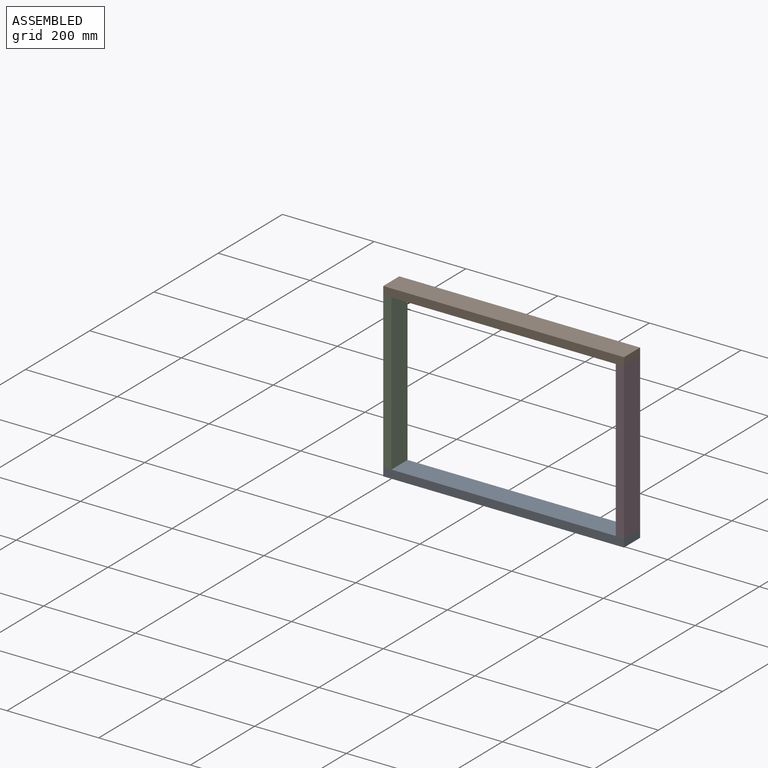
[diagram: assembled view]
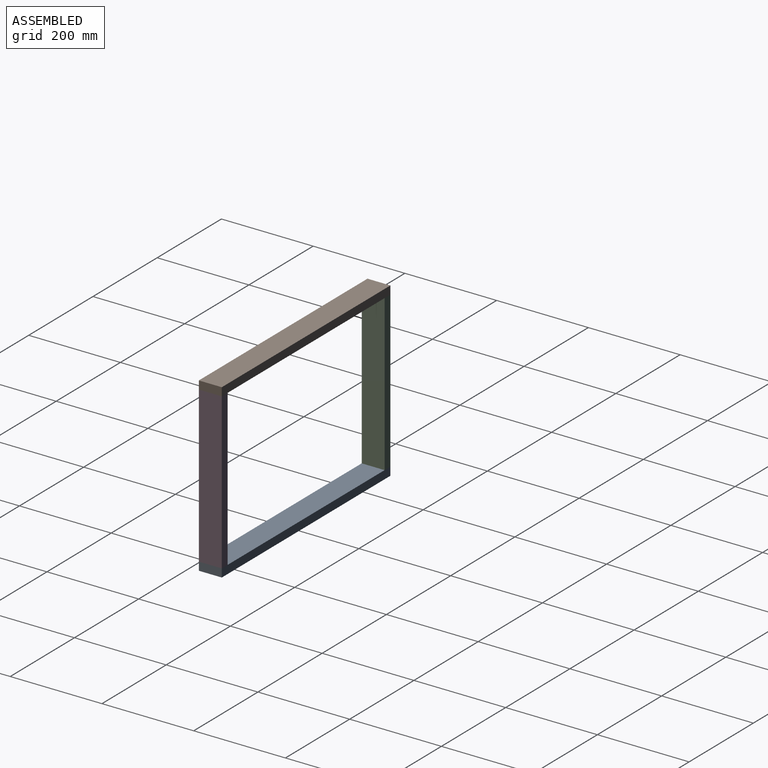
[diagram: assembled view, second angle]
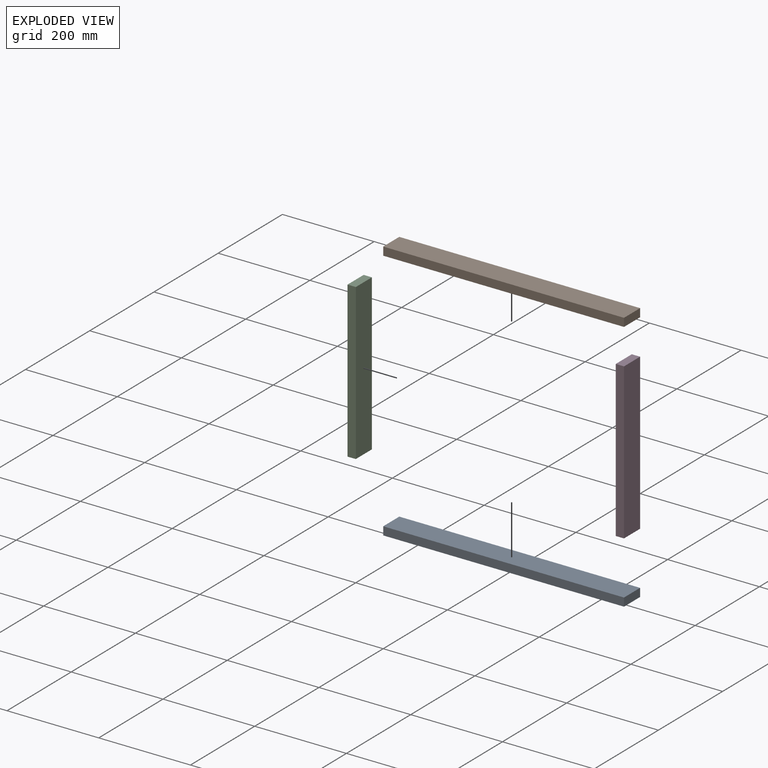
[diagram: exploded view]
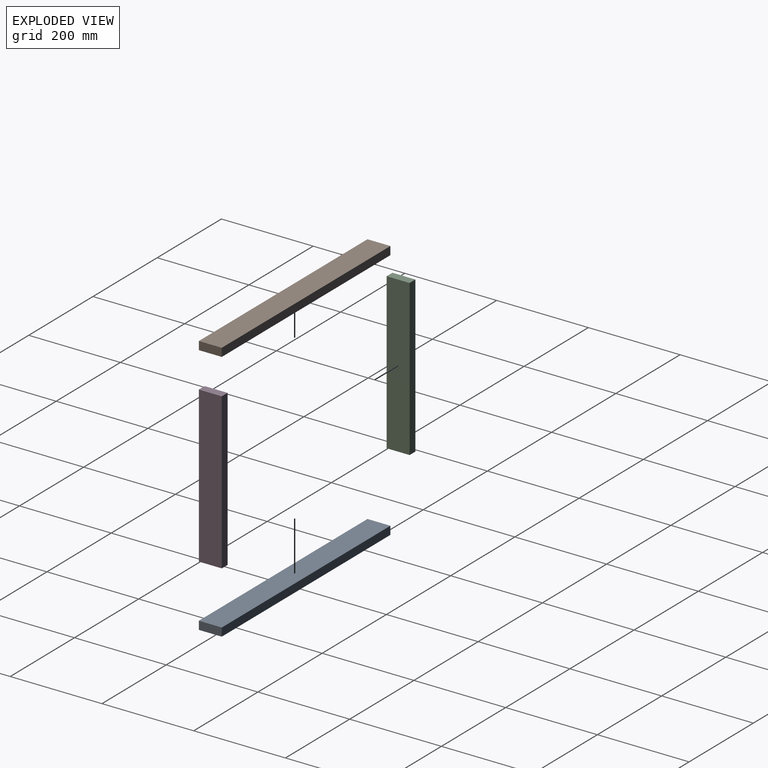
[diagram: exploded view, second angle]
FCSTD DOCUMENT  (FreeCAD 1.0R39109 (Git))
Label: 80_base_assembly
License: All rights reserved
LicenseURL: http://en.wikipedia.org/wiki/All_rights_reserved
objects: App::FeaturePython×10, App::Link×4, Assembly::JointGroup×1, Assembly::AssemblyObject×1
EXTERNAL_REF file=81_base_front_and_back.FCStd obj=Body
EXTERNAL_REF file=82_base_sides.FCStd obj=Body

FEATURE [App::Link] Body
  LinkedObject = -> <external 81_base_front_and_back.FCStd>#Body
FEATURE [App::FeaturePython] GroundedJoint  # Assembly grounded joint (typed FeaturePython)
  ObjectToGround = -> Body
FEATURE [App::Link] Body001
  LinkPlacement = pos=(-1.91e-14,1.232e-13,375) rot=(1,0,0;3.14159rad)
  LinkedObject = -> <external 81_base_front_and_back.FCStd>#Body
  Placement = pos=(-1.91e-14,1.232e-13,375) rot=(1,0,0;3.14159rad)
FEATURE [App::Link] Body002
  LinkPlacement = pos=(-262.5,9.58e-14,187.5) rot=(0.707107,0,0.707107;3.14159rad)
  LinkedObject = -> <external 82_base_sides.FCStd>#Body
  Placement = pos=(-262.5,9.58e-14,187.5) rot=(0.707107,0,0.707107;3.14159rad)
FEATURE [App::Link] Body003
  LinkPlacement = pos=(244.5,3.53e-14,187.5) rot=(0,1,0;1.5708rad)
  LinkedObject = -> <external 82_base_sides.FCStd>#Body
  Placement = pos=(244.5,3.53e-14,187.5) rot=(0,1,0;1.5708rad)
FEATURE [App::FeaturePython] Joint  label="s1-1"  # Assembly joint (typed FeaturePython)
  Activated = true
  AngleMax = 0
  AngleMin = 0
  Detach1 = false
  Detach2 = false
  Distance = 0
  Distance2 = 0
  EnableAngleMax = false
  EnableAngleMin = false
  EnableLengthMax = false
  EnableLengthMin = false
  JointType = 5 (Distance)
  LengthMax = 0
  LengthMin = 0
  Placement1 = pos=(169.5,1e-16,9) rot=(-0.57735,0.57735,-0.57735;2.0944rad)
  Placement2 = pos=(4.7e-15,6e-16,18) rot=(0,0,1;0rad)
  Reference1 = -> Assembly [Body003.Face2,Body003.?Vertex6]
  Reference2 = -> Assembly [Body.Face6,Body.Vertex6]
FEATURE [App::FeaturePython] Joint001  label="s1-2"  # Assembly joint (typed FeaturePython)
  Activated = true
  AngleMax = 0
  AngleMin = 0
  Detach1 = false
  Detach2 = false
  Distance = 0
  Distance2 = 0
  EnableAngleMax = false
  EnableAngleMin = false
  EnableLengthMax = false
  EnableLengthMin = false
  JointType = 5 (Distance)
  LengthMax = 0
  LengthMin = 0
  Placement1 = pos=(0,-25,9) rot=(0,-0.707107,0.707107;3.14159rad)
  Placement2 = pos=(-2e-16,-25,9) rot=(0,-0.707107,0.707107;3.14159rad)
  Reference1 = -> Assembly [Body003.Face3,Body003.Face3]
  Reference2 = -> Assembly [Body.Face3,Body.Vertex5]
FEATURE [App::FeaturePython] Joint002  label="s1-3"  # Assembly joint (typed FeaturePython)
  Activated = true
  AngleMax = 0
  AngleMin = 0
  Detach1 = false
  Detach2 = false
  Distance = 0
  Distance2 = 0
  EnableAngleMax = false
  EnableAngleMin = false
  EnableLengthMax = false
  EnableLengthMin = false
  JointType = 5 (Distance)
  LengthMax = 0
  LengthMin = 0
  Placement1 = pos=(0,2e-15,18) rot=(0,0,1;0rad)
  Placement2 = pos=(262.5,4e-16,9) rot=(0.57735,-0.57735,0.57735;4.18879rad)
  Reference1 = -> Assembly [Body003.Face6,Body003.Face6]
  Reference2 = -> Assembly [Body.Face2,Body.Face2]
FEATURE [App::FeaturePython] Joint003  label="s2-1"  # Assembly joint (typed FeaturePython)
  Activated = true
  AngleMax = 0
  AngleMin = 0
  Detach1 = false
  Detach2 = false
  Distance = 0
  Distance2 = 0
  EnableAngleMax = false
  EnableAngleMin = false
  EnableLengthMax = false
  EnableLengthMin = false
  JointType = 5 (Distance)
  LengthMax = 0
  LengthMin = 0
  Placement1 = pos=(0,25,9) rot=(-1,0,0;1.5708rad)
  Placement2 = pos=(-2e-16,-25,9) rot=(0,-0.707107,0.707107;3.14159rad)
  Reference1 = -> Assembly [Body002.Face1,Body002.Face1]
  Reference2 = -> Assembly [Body.Face3,Body.Vertex7]
FEATURE [App::FeaturePython] Joint004  label="s2-2"  # Assembly joint (typed FeaturePython)
  Activated = true
  AngleMax = 0
  AngleMin = 0
  Detach1 = false
  Detach2 = false
  Distance = 0
  Distance2 = 0
  EnableAngleMax = false
  EnableAngleMin = false
  EnableLengthMax = false
  EnableLengthMin = false
  JointType = 5 (Distance)
  LengthMax = 0
  LengthMin = 0
  Placement1 = pos=(-169.5,-6e-16,9) rot=(0.57735,0.57735,-0.57735;4.18879rad)
  Placement2 = pos=(4.7e-15,6e-16,18) rot=(0,0,1;0rad)
  Reference1 = -> Assembly [Body002.Face4,Body002.?Vertex1]
  Reference2 = -> Assembly [Body.Face6,Body.Vertex2]
FEATURE [App::FeaturePython] Joint005  label="s2-3"  # Assembly joint (typed FeaturePython)
  Activated = true
  AngleMax = 0
  AngleMin = 0
  Detach1 = false
  Detach2 = false
  Distance = 0
  Distance2 = 0
  EnableAngleMax = false
  EnableAngleMin = false
  EnableLengthMax = false
  EnableLengthMin = false
  JointType = 5 (Distance)
  LengthMax = 0
  LengthMin = 0
  Placement1 = pos=(-262.5,-4e-16,9) rot=(-0.57735,-0.57735,0.57735;2.0944rad)
  Placement2 = pos=(0,1.7e-15,0) rot=(0,0,1;0rad)
  Reference1 = -> Assembly [Body.Face4,Body.Face4]
  Reference2 = -> Assembly [Body002.Face5,Body002.?Vertex1]
FEATURE [App::FeaturePython] Joint006  label="B1-1"  # Assembly joint (typed FeaturePython)
  Activated = true
  AngleMax = 0
  AngleMin = 0
  Detach1 = false
  Detach2 = false
  Distance = 0
  Distance2 = 0
  EnableAngleMax = false
  EnableAngleMin = false
  EnableLengthMax = false
  EnableLengthMin = false
  JointType = 5 (Distance)
  LengthMax = 0
  LengthMin = 0
  Placement1 = pos=(0,2e-15,18) rot=(0,0,1;0rad)
  Placement2 = pos=(262.5,-1.3e-15,9) rot=(-0.57735,0.57735,-0.57735;2.0944rad)
  Reference1 = -> Assembly [Body003.Face6,Body003.?Vertex2]
  Reference2 = -> Assembly [Body001.Face2,Body001.Face2]
FEATURE [App::FeaturePython] Joint007  label="B1-2"  # Assembly joint (typed FeaturePython)
  Activated = true
  AngleMax = 0
  AngleMin = 0
  Detach1 = false
  Detach2 = false
  Distance = 0
  Distance2 = 0
  EnableAngleMax = false
  EnableAngleMin = false
  EnableLengthMax = false
  EnableLengthMin = false
  JointType = 5 (Distance)
  LengthMax = 0
  LengthMin = 0
  Placement1 = pos=(-6.4e-15,25,9) rot=(-1,0,0;1.5708rad)
  Placement2 = pos=(0,-25,9) rot=(0,-0.707107,0.707107;3.14159rad)
  Reference1 = -> Assembly [Body001.Face1,Body001.Vertex3]
  Reference2 = -> Assembly [Body003.Face3,Body003.?Vertex8]
FEATURE [App::FeaturePython] Joint008  label="B1-3"  # Assembly joint (typed FeaturePython)
  Activated = true
  AngleMax = 0
  AngleMin = 0
  Detach1 = false
  Detach2 = false
  Distance = 0
  Distance2 = 0
  EnableAngleMax = false
  EnableAngleMin = false
  EnableLengthMax = false
  EnableLengthMin = false
  JointType = 5 (Distance)
  LengthMax = 0
  LengthMin = 0
  Placement1 = pos=(-169.5,1e-16,9) rot=(-0.57735,-0.57735,0.57735;2.0944rad)
  Placement2 = pos=(-4e-15,1.2e-15,18) rot=(0,0,1;0rad)
  Reference1 = -> Assembly [Body003.Face4,Body003.Face4]
  Reference2 = -> Assembly [Body001.Face6,Body001.Face6]
FEATURE [Assembly::JointGroup] Joints
  Group = -> [GroundedJoint,Joint,Joint001,Joint002,Joint003,Joint004,Joint005,Joint006,Joint007,Joint008]
FEATURE [Assembly::AssemblyObject] Assembly
  Group = -> [Joints,Body,GroundedJoint,Body001,Body002,Body003,Joint,Joint001,Joint002,Joint003,Joint004,Joint005,Joint006,Joint007,Joint008]
  Origin = -> Origin
  Type = Assembly

RESOLVED EXTERNAL PARTS (link-assembly join: the EXTERNAL_REF files above that resolve inside this repo's crawl, each included once):
---- part 81_base_front_and_back.FCStd = doc fcstd_27d36969567b ----
FCSTD DOCUMENT  (FreeCAD 1.0R39109 (Git))
Label: 81_base_front_and_back
License: All rights reserved
LicenseURL: http://en.wikipedia.org/wiki/All_rights_reserved
objects: Spreadsheet::Sheet×1, Sketcher::SketchObject×1, PartDesign::Pad×1, PartDesign::Body×1
note: 6 computed .brp shape members not serialized (recipe doc carries the construction recipe); baked Part::Feature solids carry a one-line shape summary decoded from their .brp

FEATURE [Spreadsheet::Sheet] Spreadsheet
  cells = A2='length; B2(length)=525; A3='width; B3(width)=50; A4='height; B4(height)=18
FEATURE [Sketcher::SketchObject] Sketch
  ArcFitTolerance = 0
  AttachmentSupport = -> [XY_Plane]
  FullyConstrained = true
  MakeInternals = false
  MapMode = 5
  expr: Constraints[11] = Spreadsheet.length
  expr: Constraints[12] = Spreadsheet.width
  sketch-geometry (5):
    g0: LineSegment StartX=-262.5 StartY=25 StartZ=0 EndX=262.5 EndY=25 EndZ=0
    g1: LineSegment StartX=262.5 StartY=25 StartZ=0 EndX=262.5 EndY=-25 EndZ=0
    g2: LineSegment StartX=262.5 StartY=-25 StartZ=0 EndX=-262.5 EndY=-25 EndZ=0
    g3: LineSegment StartX=-262.5 StartY=-25 StartZ=0 EndX=-262.5 EndY=25 EndZ=0
    g4: LineSegment [constr] StartX=-262.5 StartY=25 StartZ=0 EndX=262.5 EndY=-25 EndZ=0
  constraints (13):
    c: Coincident(g0,g1)
    c: Coincident(g1,g2)
    c: Coincident(g2,g3)
    c: Coincident(g3,g0)
    c: Horizontal(g0)
    c: Horizontal(g2)
    c: Vertical(g1)
    c: Vertical(g3)
    c: Coincident(g4,g1)
    c: Coincident(g0,g4)
    c: Symmetric(g0,g1,g-1)
    c: Distance(g0,g0) = 525
    c: Distance(g0,g2) = 50
FEATURE [PartDesign::Pad] Pad
  Direction = (0,0,1)
  Length = 18
  Length2 = 10
  Profile = -> Sketch
  ReferenceAxis = -> Sketch [N_Axis]
  Suppressed = false
  Type = 0
  expr: Length = Spreadsheet.height
FEATURE [PartDesign::Body] Body
  AllowCompound = false
  Group = -> [Sketch,Pad]
  Origin = -> Origin
  Tip = -> Pad
---- part 82_base_sides.FCStd = doc fcstd_56e673fe6d1a ----
FCSTD DOCUMENT  (FreeCAD 1.0R39109 (Git))
Label: 82_base_sides
License: All rights reserved
LicenseURL: http://en.wikipedia.org/wiki/All_rights_reserved
objects: Spreadsheet::Sheet×1, Sketcher::SketchObject×1, PartDesign::Pad×1, PartDesign::Body×1
note: 6 computed .brp shape members not serialized (recipe doc carries the construction recipe); baked Part::Feature solids carry a one-line shape summary decoded from their .brp

FEATURE [Spreadsheet::Sheet] Spreadsheet
  cells = A2='length; B2(length)=339; A3='width; B3(width)=50; A4='height; B4(height)=18
FEATURE [Sketcher::SketchObject] Sketch
  ArcFitTolerance = 0
  AttachmentSupport = -> [XY_Plane]
  FullyConstrained = true
  MakeInternals = false
  MapMode = 5
  expr: Constraints[11] = Spreadsheet.length
  expr: Constraints[12] = Spreadsheet.width
  sketch-geometry (5):
    g0: LineSegment StartX=-169.5 StartY=25 StartZ=0 EndX=169.5 EndY=25 EndZ=0
    g1: LineSegment StartX=169.5 StartY=25 StartZ=0 EndX=169.5 EndY=-25 EndZ=0
    g2: LineSegment StartX=169.5 StartY=-25 StartZ=0 EndX=-169.5 EndY=-25 EndZ=0
    g3: LineSegment StartX=-169.5 StartY=-25 StartZ=0 EndX=-169.5 EndY=25 EndZ=0
    g4: LineSegment [constr] StartX=-169.5 StartY=25 StartZ=0 EndX=169.5 EndY=-25 EndZ=0
  constraints (13):
    c: Coincident(g0,g1)
    c: Coincident(g1,g2)
    c: Coincident(g2,g3)
    c: Coincident(g3,g0)
    c: Horizontal(g0)
    c: Horizontal(g2)
    c: Vertical(g1)
    c: Vertical(g3)
    c: Coincident(g4,g1)
    c: Coincident(g0,g4)
    c: Symmetric(g0,g1,g-1)
    c: Distance(g0,g0) = 339
    c: Distance(g0,g2) = 50
FEATURE [PartDesign::Pad] Pad
  Direction = (0,0,1)
  Length = 18
  Length2 = 10
  Profile = -> Sketch
  ReferenceAxis = -> Sketch [N_Axis]
  Suppressed = false
  Type = 0
  expr: Length = Spreadsheet.height
FEATURE [PartDesign::Body] Body
  AllowCompound = false
  Group = -> [Sketch,Pad]
  Origin = -> Origin
  Tip = -> Pad
